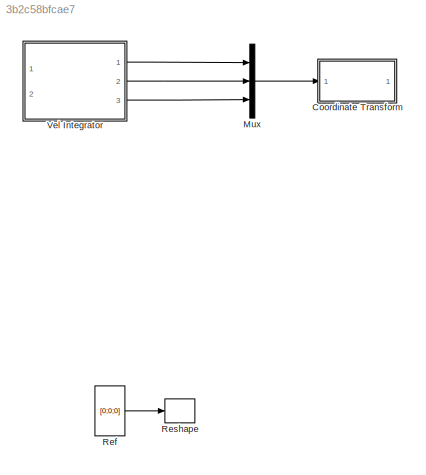
MODEL slx_3b2c58bfcae7
KIND model
CONFIG AbsTol = auto
CONFIG EnableMultiTasking = off
CONFIG FixedStep = auto
CONFIG MaxStep = auto
CONFIG MinStep = auto
CONFIG RelTol = 1e-3
CONFIG SampleTimeConstraint = Unconstrained
CONFIG Solver = VariableStepAuto
CONFIG SolverName = VariableStepAuto
CONFIG StartTime = 0.0
CONFIG StopTime = 10.0
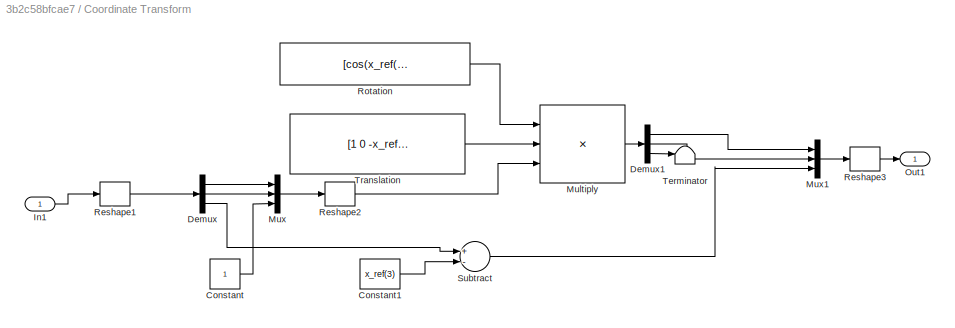
BLOCK [SubSystem] Coordinate Transform
  Ports = [1, 1]
  RequestExecContextInheritance = off
BLOCK [Constant] Coordinate Transform/Constant
BLOCK [Constant] Coordinate Transform/Constant1
  Value = x_ref(3)
BLOCK [Demux] Coordinate Transform/Demux
  DisplayOption = bar
  Outputs = 3
  Ports = [1, 3]
BLOCK [Demux] Coordinate Transform/Demux1
  DisplayOption = bar
  Outputs = 3
  Ports = [1, 3]
BLOCK [Inport] Coordinate Transform/In1
  IconDisplay = Port number
BLOCK [Product] Coordinate Transform/Multiply
  InputSameDT = off
  Inputs = 3
  Multiplication = Matrix(*)
  OutDataTypeStr = Inherit: Inherit via internal rule
  Ports = [3, 1]
  RndMeth = Floor
  SaturateOnIntegerOverflow = off
BLOCK [Mux] Coordinate Transform/Mux
  DisplayOption = bar
  Inputs = 3
  Ports = [3, 1]
BLOCK [Mux] Coordinate Transform/Mux1
  DisplayOption = bar
  Inputs = 3
  Ports = [3, 1]
BLOCK [Outport] Coordinate Transform/Out1
  IconDisplay = Port number
BLOCK [Reshape] Coordinate Transform/Reshape1
  OutputDimensionality = Column vector (2-D)
  Ports = [1, 1]
BLOCK [Reshape] Coordinate Transform/Reshape2
  OutputDimensionality = Column vector (2-D)
  Ports = [1, 1]
BLOCK [Reshape] Coordinate Transform/Reshape3
  OutputDimensionality = Column vector (2-D)
  Ports = [1, 1]
BLOCK [Constant] Coordinate Transform/Rotation
  Value = [cos(x_ref(3)) sin(x_ref(3));-sin(x_ref(3)) cos(x_ref(3))]
  VectorParams1D = off
BLOCK [Sum] Coordinate Transform/Subtract
  InputSameDT = off
  Inputs = +-
  OutDataTypeStr = Inherit: Inherit via internal rule
  Ports = [2, 1]
  SaturateOnIntegerOverflow = off
BLOCK [Terminator] Coordinate Transform/Terminator
BLOCK [Constant] Coordinate Transform/Translation
  Value = [1 0 -x_ref(1);0 1 x_ref(2); 0 0 1]
  VectorParams1D = off
BLOCK [Mux] Mux
  DisplayOption = bar
  Inputs = 3
  Ports = [3, 1]
BLOCK [Constant] Ref
  Value = [0;0;0]
  VectorParams1D = off
BLOCK [Reshape] Reshape
  OutputDimensionality = Column vector (2-D)
  Ports = [1, 1]
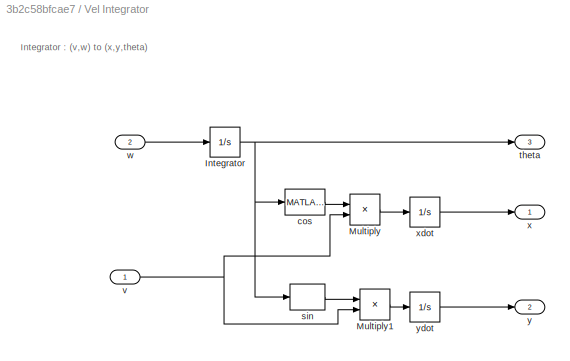
BLOCK [SubSystem] Vel Integrator
  Ports = [2, 3]
  RequestExecContextInheritance = off
BLOCK [Integrator] Vel Integrator/Integrator
  InitialCondition = theta_0
  Ports = [1, 1]
BLOCK [Product] Vel Integrator/Multiply
  InputSameDT = off
  OutDataTypeStr = Inherit: Inherit via internal rule
  Ports = [2, 1]
  RndMeth = Floor
  SaturateOnIntegerOverflow = off
BLOCK [Product] Vel Integrator/Multiply1
  InputSameDT = off
  OutDataTypeStr = Inherit: Inherit via internal rule
  Ports = [2, 1]
  RndMeth = Floor
  SaturateOnIntegerOverflow = off
BLOCK [MATLABFcn] Vel Integrator/cos
  MATLABFcn = cos(u)
  Ports = [1, 1]
BLOCK [MATLABFcn] Vel Integrator/sin
  MATLABFcn = sin(u)
  Ports = [1, 1]
BLOCK [Outport] Vel Integrator/theta
  IconDisplay = Port number
  Port = 3
BLOCK [Inport] Vel Integrator/v
  IconDisplay = Port number
BLOCK [Inport] Vel Integrator/w
  IconDisplay = Port number
  Port = 2
BLOCK [Outport] Vel Integrator/x
  IconDisplay = Port number
BLOCK [Integrator] Vel Integrator/xdot
  InitialCondition = x_0
  Ports = [1, 1]
BLOCK [Outport] Vel Integrator/y
  IconDisplay = Port number
  Port = 2
BLOCK [Integrator] Vel Integrator/ydot
  InitialCondition = x_0
  Ports = [1, 1]
ANNOTATION Vel Integrator: Integrator : (v,w) to (x,y,theta)
LINE Coordinate Transform/Constant1:1 -> Coordinate Transform/Subtract:2
LINE Coordinate Transform/Constant:1 -> Coordinate Transform/Mux:3
LINE Coordinate Transform/Demux1:1 -> Coordinate Transform/Mux1:1
LINE Coordinate Transform/Demux1:2 -> Coordinate Transform/Mux1:2
LINE Coordinate Transform/Demux1:3 -> Coordinate Transform/Terminator:1
LINE Coordinate Transform/Demux:1 -> Coordinate Transform/Mux:1
LINE Coordinate Transform/Demux:2 -> Coordinate Transform/Mux:2
LINE Coordinate Transform/Demux:3 -> Coordinate Transform/Subtract:1
LINE Coordinate Transform/In1:1 -> Coordinate Transform/Reshape1:1
LINE Coordinate Transform/Multiply:1 -> Coordinate Transform/Demux1:1
LINE Coordinate Transform/Mux1:1 -> Coordinate Transform/Reshape3:1
LINE Coordinate Transform/Mux:1 -> Coordinate Transform/Reshape2:1
LINE Coordinate Transform/Reshape1:1 -> Coordinate Transform/Demux:1
LINE Coordinate Transform/Reshape2:1 -> Coordinate Transform/Multiply:3
LINE Coordinate Transform/Reshape3:1 -> Coordinate Transform/Out1:1
LINE Coordinate Transform/Rotation:1 -> Coordinate Transform/Multiply:1
LINE Coordinate Transform/Subtract:1 -> Coordinate Transform/Mux1:3
LINE Coordinate Transform/Translation:1 -> Coordinate Transform/Multiply:2
LINE Mux:1 -> Coordinate Transform:1
LINE Ref:1 -> Reshape:1
NET Vel Integrator/Integrator:1 -> Vel Integrator/cos:1, Vel Integrator/sin:1, Vel Integrator/theta:1
LINE Vel Integrator/Multiply1:1 -> Vel Integrator/ydot:1
LINE Vel Integrator/Multiply:1 -> Vel Integrator/xdot:1
LINE Vel Integrator/cos:1 -> Vel Integrator/Multiply:1
LINE Vel Integrator/sin:1 -> Vel Integrator/Multiply1:1
NET Vel Integrator/v:1 -> Vel Integrator/Multiply1:2, Vel Integrator/Multiply:2
LINE Vel Integrator/w:1 -> Vel Integrator/Integrator:1
LINE Vel Integrator/xdot:1 -> Vel Integrator/x:1
LINE Vel Integrator/ydot:1 -> Vel Integrator/y:1
LINE Vel Integrator:1 -> Mux:1
LINE Vel Integrator:2 -> Mux:2
LINE Vel Integrator:3 -> Mux:3
note: NET lines group one-source signal fan-out (src -> all destinations, sorted); 1:1 wires keep LINE
